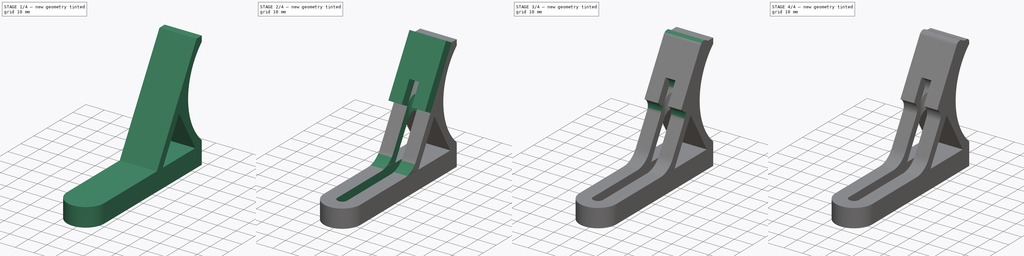
[diagram: build sequence overview — one tinted view per stage of 4, left to right]
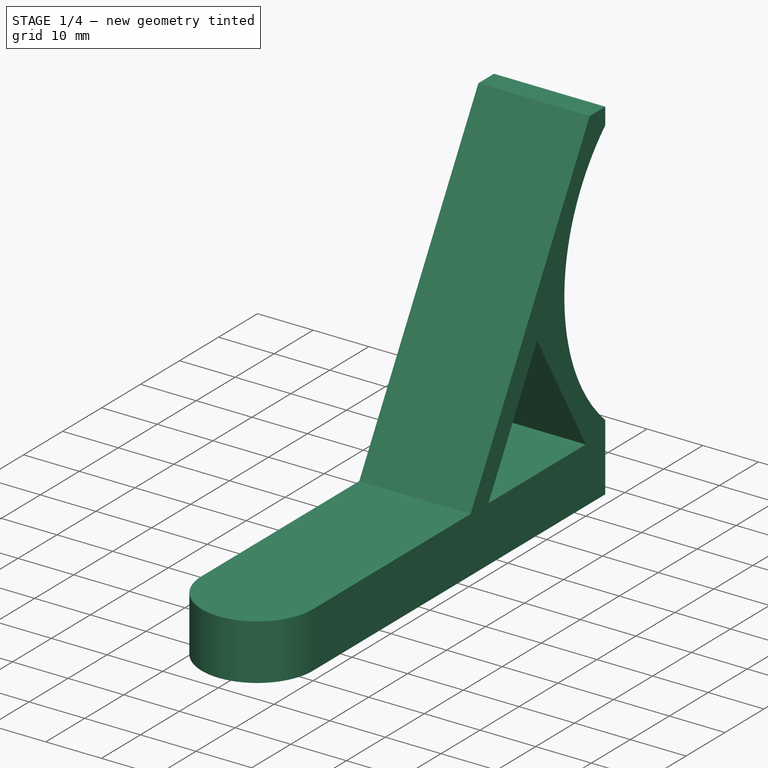
[diagram: stage 1 of 4 — iso view after this stage's code; geometry added in this stage tinted green]
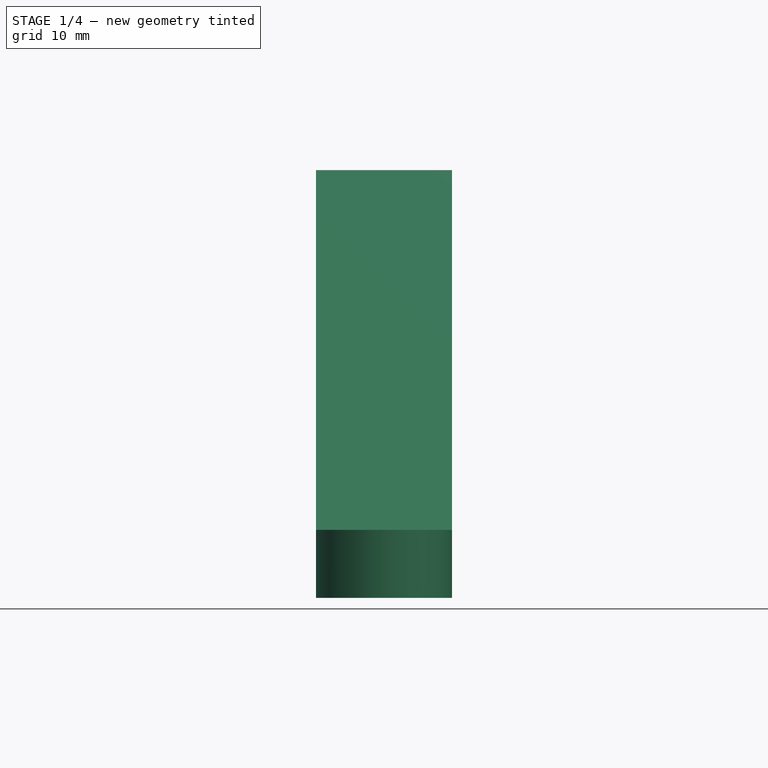
[diagram: stage 1 of 4 — front view after this stage's code; geometry added in this stage tinted green]
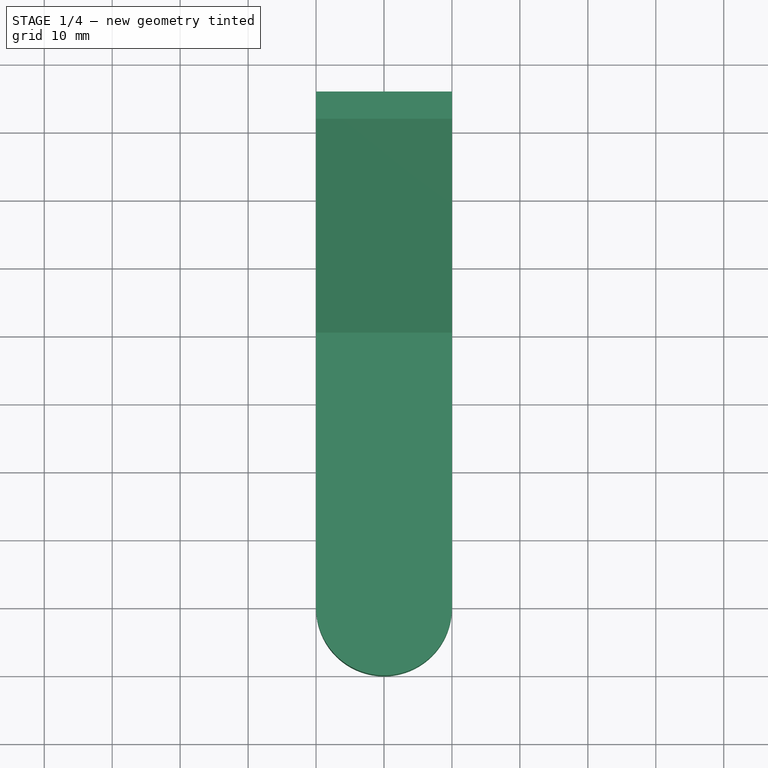
[diagram: stage 1 of 4 — top view after this stage's code; geometry added in this stage tinted green]
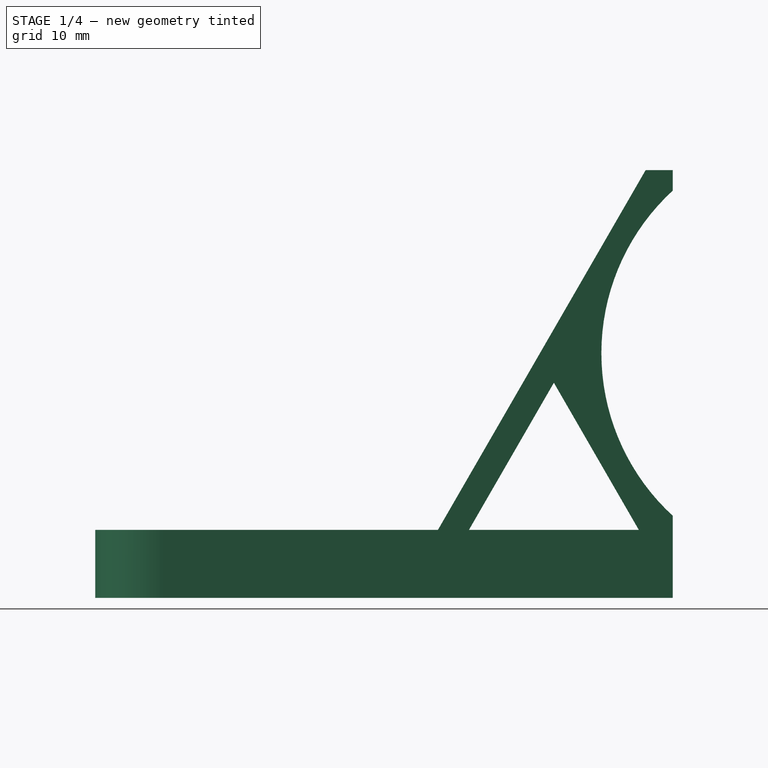
[diagram: stage 1 of 4 — right view after this stage's code; geometry added in this stage tinted green]
FCSTD DOCUMENT  (FreeCAD 0.18R16117 (Git))
Label: cnc_tube_holder
License: All rights reserved
LicenseURL: http://en.wikipedia.org/wiki/All_rights_reserved
objects: PartDesign::Fillet×6, Sketcher::SketchObject×4, PartDesign::Pad×2, PartDesign::Pocket×2, PartDesign::Body×1
note: 19 computed .brp shape members not serialized (recipe doc carries the construction recipe); baked Part::Feature solids carry a one-line shape summary decoded from their .brp

FEATURE [Sketcher::SketchObject] Sketch
  MapMode = 5
  Support = -> [XY_Plane]
  sketch-geometry (4):
    g0: LineSegment StartX=-10 StartY=75 StartZ=0 EndX=-10 EndY=0 EndZ=0
    g1: LineSegment StartX=10 StartY=-4e-16 StartZ=0 EndX=10 EndY=75 EndZ=0
    g2: LineSegment StartX=10 StartY=75 StartZ=0 EndX=-10 EndY=75 EndZ=0
    g3: ArcOfCircle CenterX=0 CenterY=-4e-16 CenterZ=0 NormalX=0 NormalY=0 NormalZ=1 AngleXU=0 Radius=10 StartAngle=3.14159 EndAngle=6.28319
  constraints (12):
    c: Coincident(g2,g0)
    c: Coincident(g2,g1)
    c: Vertical(g0)
    c: Vertical(g1)
    c: Horizontal(g2)
    c: Coincident(g0,g3)
    c: Coincident(g3,g1)
    c: Horizontal(g0,g1)
    c: Horizontal(g1,g3)
    c: DistanceY(g1,g1) = 75
    c: DistanceX(g2,g2) = 20
    c: Coincident(g3,g-1)
FEATURE [PartDesign::Pad] Pad
  Length = 67.31
  Length2 = 100
  Profile = -> Sketch
  Type = 0
FEATURE [Sketcher::SketchObject] Sketch001
  ExternalGeometry = -> [Pad]
  MapMode = 5
  Placement = pos=(-10,0,0) rot=(0.57735,-0.57735,-0.57735;2.0944rad)
  Support = -> [Pad]
  sketch-geometry (12):
    g0: LineSegment StartX=-71 StartY=62.9353 StartZ=0 EndX=-40.4378 EndY=10 EndZ=0
    g1: LineSegment StartX=26.9469 StartY=74.4791 StartZ=0 EndX=26.9469 EndY=10 EndZ=0
    g2: ArcOfCircle CenterX=-97 CenterY=36 CenterZ=0 NormalX=0 NormalY=0 NormalZ=1 AngleXU=0 Radius=32.51 StartAngle=5.45568 EndAngle=7.11069
    g3: LineSegment StartX=-75 StartY=59.9353 StartZ=0 EndX=-97 EndY=36 EndZ=0
    g4: LineSegment StartX=-97 StartY=36 StartZ=0 EndX=-75 EndY=12.0647 EndZ=0
    g5: LineSegment StartX=-81.8366 StartY=62.9353 StartZ=0 EndX=-71 EndY=62.9353 EndZ=0
    g6: LineSegment StartX=-81.8366 StartY=62.9353 StartZ=0 EndX=-81.8366 EndY=74.4791 EndZ=0
    g7: LineSegment StartX=-81.8366 StartY=74.4791 StartZ=0 EndX=26.9469 EndY=74.4791 EndZ=0
    g8: LineSegment StartX=26.9469 StartY=10 StartZ=0 EndX=-40.4378 EndY=10 EndZ=0
    g9: LineSegment StartX=-70 StartY=10 StartZ=0 EndX=-45 EndY=10 EndZ=0
    g10: LineSegment StartX=-57.5 StartY=31.6506 StartZ=0 EndX=-45 EndY=10 EndZ=0
    g11: LineSegment StartX=-57.5 StartY=31.6506 StartZ=0 EndX=-70 EndY=10 EndZ=0
  constraints (33):
    c: Vertical(g1)
    c: DistanceY(g-1,g0) = 10
    c: PointOnObject(g2,g-4)
    c: Coincident(g4,g2)
    c: Coincident(g3,g4)
    c: Coincident(g3,g2)
    c: Radius(g2) = 32.51
    c: Coincident(g2,g3)
    c: PointOnObject(g2,g-4)
    c: DistanceY(g-5,g2) = 36
    c: DistanceY(g2,g0) = 3
    c: DistanceX(g2,g0) = 4
    c: DistanceX(g2,g2) = 22
    c: Coincident(g5,g0)
    c: Horizontal(g5)
    c: Coincident(g8,g1)
    c: Horizontal(g8)
    c: Coincident(g8,g0)
    c: Coincident(g6,g7)
    c: Horizontal(g7)
    c: Vertical(g6)
    c: Coincident(g6,g5)
    c: Coincident(g7,g1)
    c: Coincident(g11,g10)
    c: Coincident(g11,g9)
    c: Horizontal(g9)
    c: Coincident(g10,g9)
    c: Angle(g10,g9) = 1.0472
    c: Horizontal(g9,g0)
    c: Angle(g9,g11) = 1.0472
    c: DistanceX(g-5,g9) = 5
    c: Angle(g8,g0) = 2.0944
    c: DistanceX(g9,g9) = 25
FEATURE [PartDesign::Pocket] Pocket
  BaseFeature = -> Pad
  Length = 5
  Length2 = 100
  Profile = -> Sketch001
  Type = 1
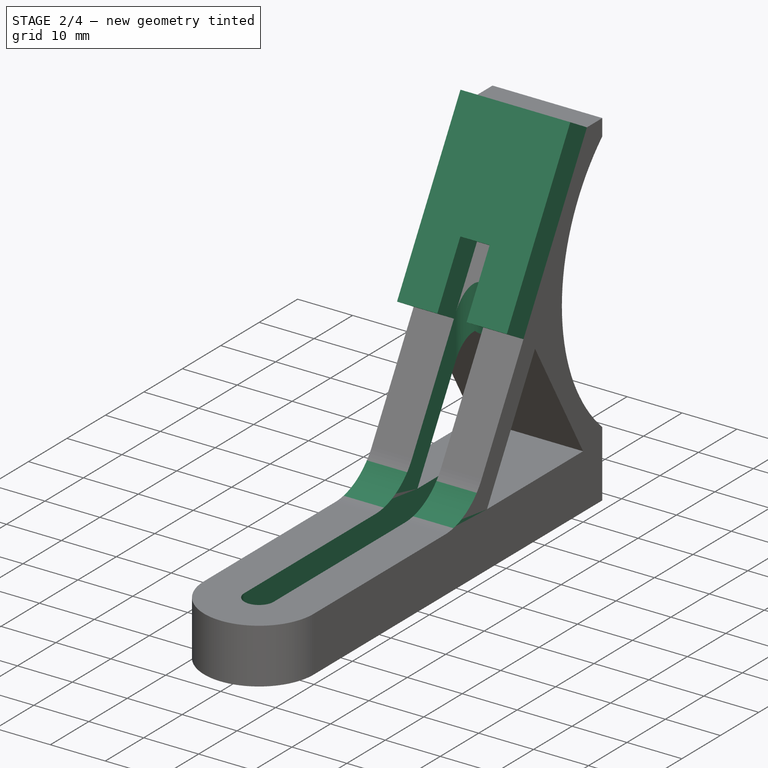
[diagram: stage 2 of 4 — iso view after this stage's code; geometry added in this stage tinted green]
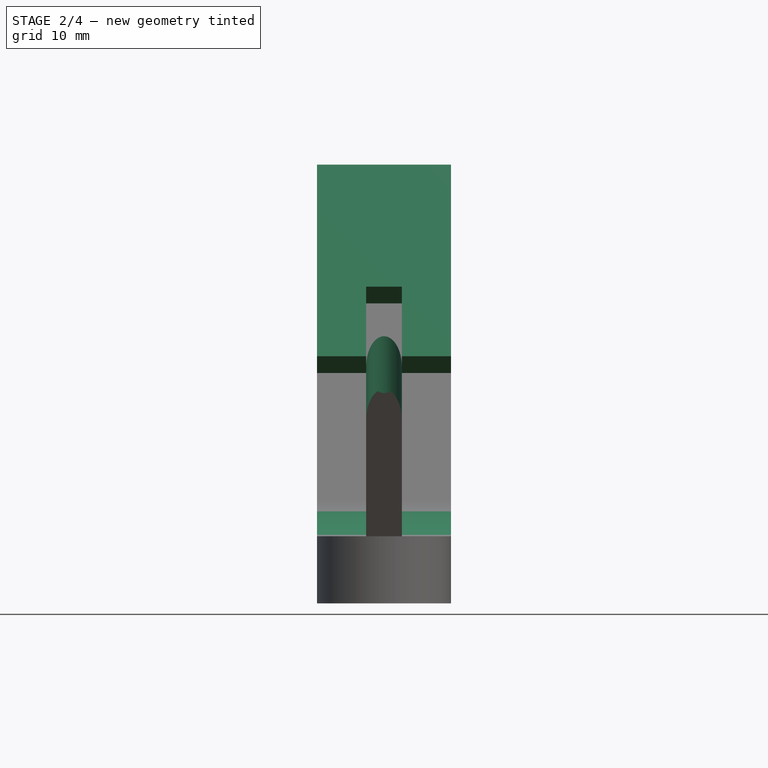
[diagram: stage 2 of 4 — front view after this stage's code; geometry added in this stage tinted green]
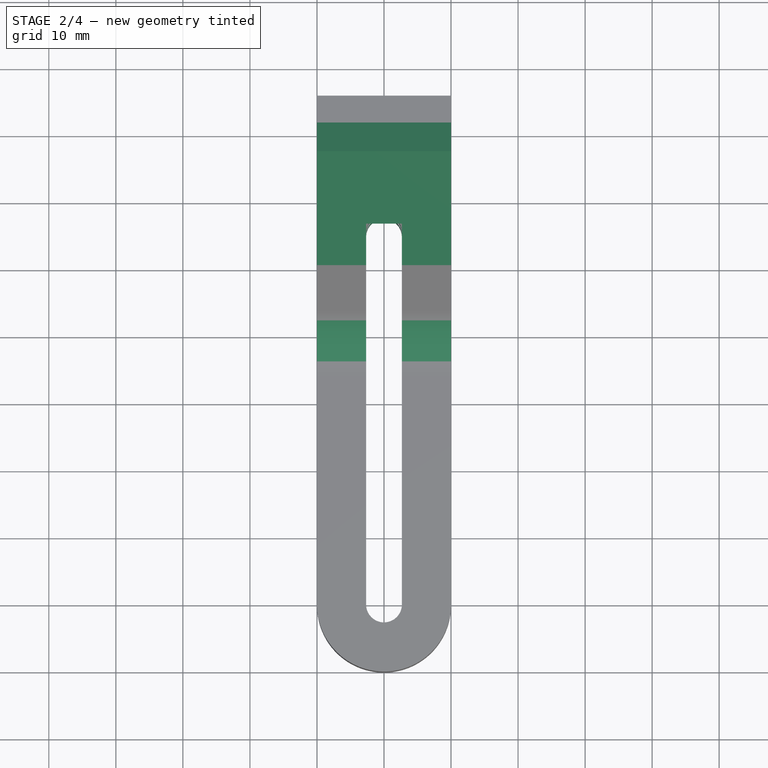
[diagram: stage 2 of 4 — top view after this stage's code; geometry added in this stage tinted green]
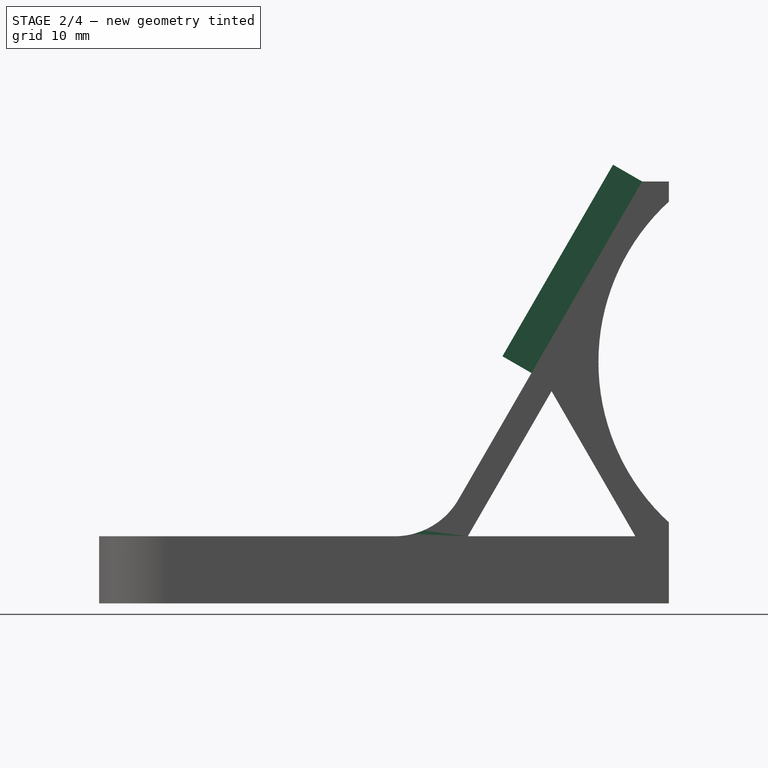
[diagram: stage 2 of 4 — right view after this stage's code; geometry added in this stage tinted green]
FEATURE [Sketcher::SketchObject] Sketch002
  MapMode = 5
  Placement = pos=(0,0,0) rot=(1,0,0;3.14159rad)
  Support = -> [Pocket]
  sketch-geometry (4):
    g0: ArcOfCircle CenterX=0 CenterY=0 CenterZ=0 NormalX=0 NormalY=0 NormalZ=1 AngleXU=0 Radius=2.667 StartAngle=1e-16 EndAngle=3.14159
    g1: ArcOfCircle CenterX=0 CenterY=-55 CenterZ=0 NormalX=0 NormalY=0 NormalZ=1 AngleXU=0 Radius=2.667 StartAngle=3.14159 EndAngle=6.28319
    g2: LineSegment StartX=-2.667 StartY=3e-16 StartZ=0 EndX=-2.667 EndY=-55 EndZ=0
    g3: LineSegment StartX=2.667 StartY=3e-16 StartZ=0 EndX=2.667 EndY=-55 EndZ=0
  constraints (9):
    c: Tangent(g0,g3) = 1.5708
    c: Tangent(g0,g2) = -1.5708
    c: Tangent(g2,g1) = -1.5708
    c: Tangent(g3,g1) = 1.5708
    c: Vertical(g2)
    c: Equal(g0,g1)
    c: Coincident(g0,g-1)
    c: DistanceX(g0,g0) = 5.334
    c: DistanceY(g3,g3) = 55
FEATURE [PartDesign::Pocket] Pocket001
  BaseFeature = -> Pocket
  Length = 5
  Length2 = 100
  Profile = -> Sketch002
  Type = 1
FEATURE [PartDesign::Fillet] Fillet
  Base = -> Pocket001 [Edge25,Edge21]
  BaseFeature = -> Pocket001
  Radius = 11
FEATURE [Sketcher::SketchObject] Sketch003
  ExternalGeometry = -> [Fillet]
  MapMode = 5
  Placement = pos=(0,25.9982,-15.0101) rot=(1,0,0;1.0472rad)
  Support = -> [Fillet]
  sketch-geometry (8):
    g0: LineSegment StartX=-10 StartY=90.0036 StartZ=0 EndX=10 EndY=90.0036 EndZ=0
    g1: LineSegment StartX=10 StartY=90.0036 StartZ=0 EndX=10 EndY=57.0036 EndZ=0
    g2: LineSegment StartX=-10 StartY=57.0036 StartZ=0 EndX=-10 EndY=90.0036 EndZ=0
    g3: LineSegment StartX=2.667 StartY=69.0036 StartZ=0 EndX=2.667 EndY=57.0036 EndZ=0
    g4: LineSegment StartX=2.667 StartY=57.0036 StartZ=0 EndX=10 EndY=57.0036 EndZ=0
    g5: LineSegment StartX=-10 StartY=57.0036 StartZ=0 EndX=-2.667 EndY=57.0036 EndZ=0
    g6: LineSegment StartX=-2.667 StartY=69.0036 StartZ=0 EndX=-2.667 EndY=57.0036 EndZ=0
    g7: LineSegment StartX=-2.667 StartY=69.0036 StartZ=0 EndX=2.667 EndY=69.0036 EndZ=0
  constraints (22):
    c: Coincident(g0,g2)
    c: Coincident(g0,g-4)
    c: Coincident(g0,g1)
    c: Coincident(g0,g-5)
    c: Horizontal(g7)
    c: Vertical(g6)
    c: Horizontal(g5)
    c: Horizontal(g4)
    c: Vertical(g3)
    c: Coincident(g7,g6)
    c: Coincident(g5,g6)
    c: PointOnObject(g5,g-7)
    c: Coincident(g2,g5)
    c: PointOnObject(g2,g-4)
    c: Coincident(g7,g3)
    c: Coincident(g3,g4)
    c: PointOnObject(g3,g-6)
    c: Equal(g3,g6)
    c: Coincident(g1,g4)
    c: PointOnObject(g1,g-5)
    c: DistanceY(g1,g1) = 33
    c: DistanceY(g3,g3) = 12
FEATURE [PartDesign::Pad] Pad001
  BaseFeature = -> Fillet
  Length = 5
  Length2 = 100
  Profile = -> Sketch003
  Type = 0
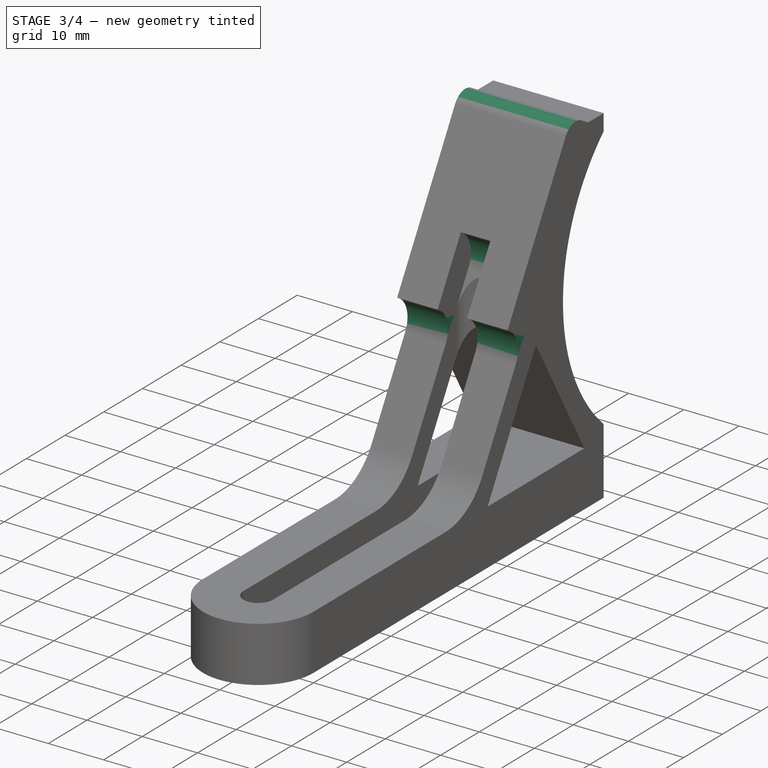
[diagram: stage 3 of 4 — iso view after this stage's code; geometry added in this stage tinted green]
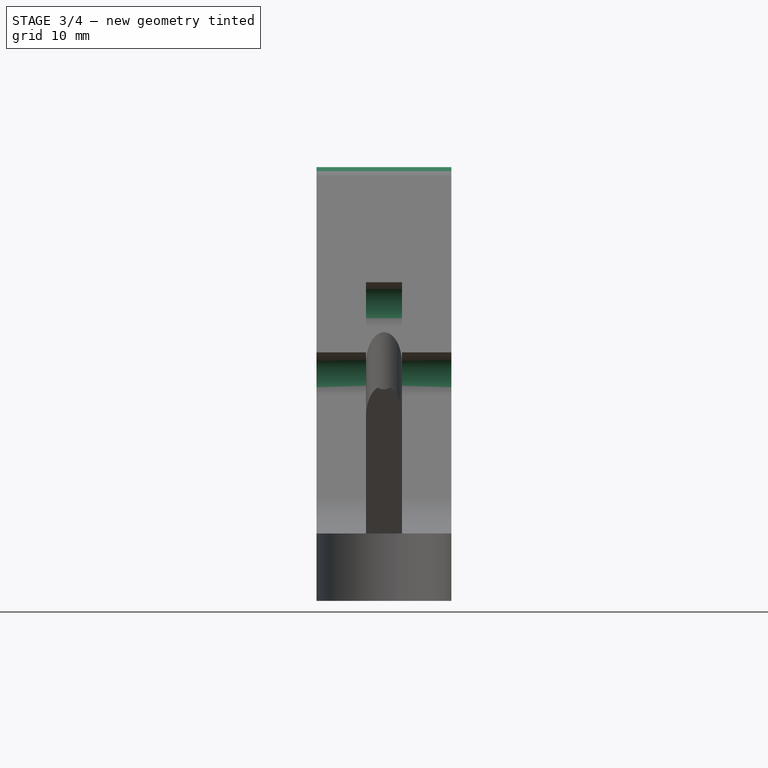
[diagram: stage 3 of 4 — front view after this stage's code; geometry added in this stage tinted green]
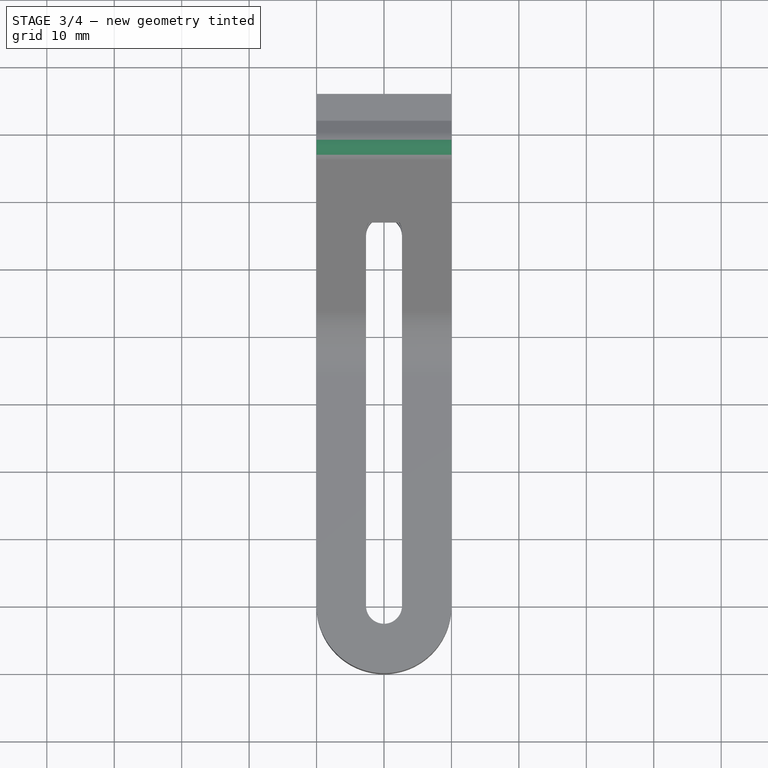
[diagram: stage 3 of 4 — top view after this stage's code; geometry added in this stage tinted green]
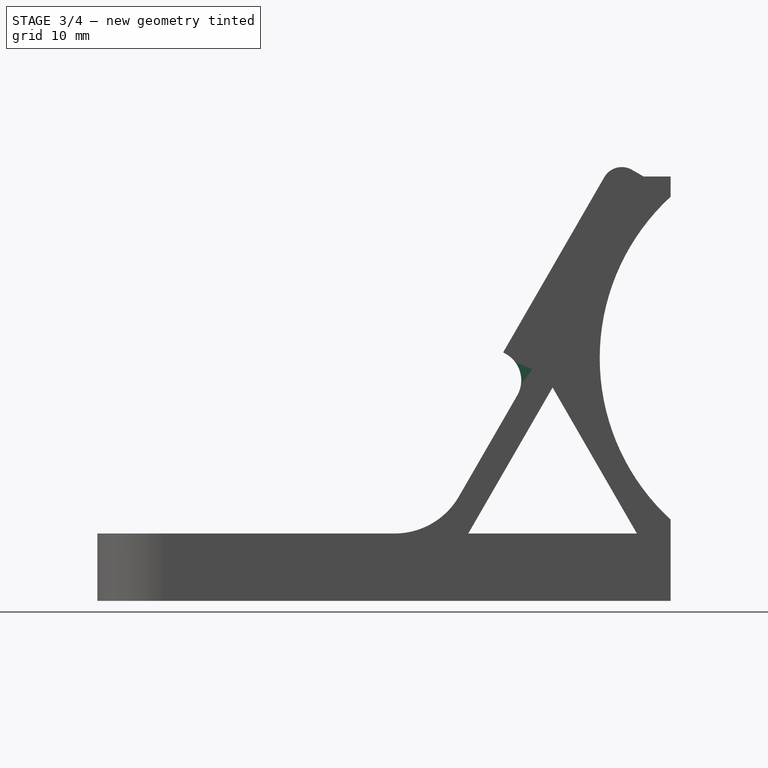
[diagram: stage 3 of 4 — right view after this stage's code; geometry added in this stage tinted green]
FEATURE [PartDesign::Fillet] Fillet001
  Base = -> Pad001 [Edge87,Edge29]
  BaseFeature = -> Pad001
  Radius = 4.5
FEATURE [PartDesign::Fillet] Fillet002
  Base = -> Fillet001 [Edge100]
  BaseFeature = -> Fillet001
  Radius = 4.75
FEATURE [PartDesign::Fillet] Fillet003
  Base = -> Fillet002 [Edge15]
  BaseFeature = -> Fillet002
  Radius = 3
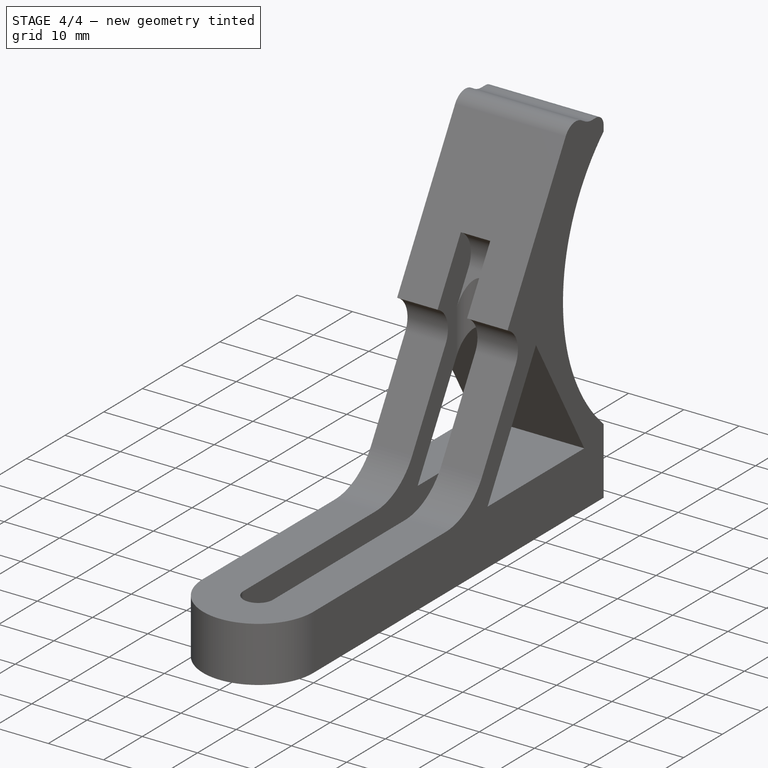
[diagram: stage 4 of 4 — iso view after this stage's code; geometry added in this stage tinted green]
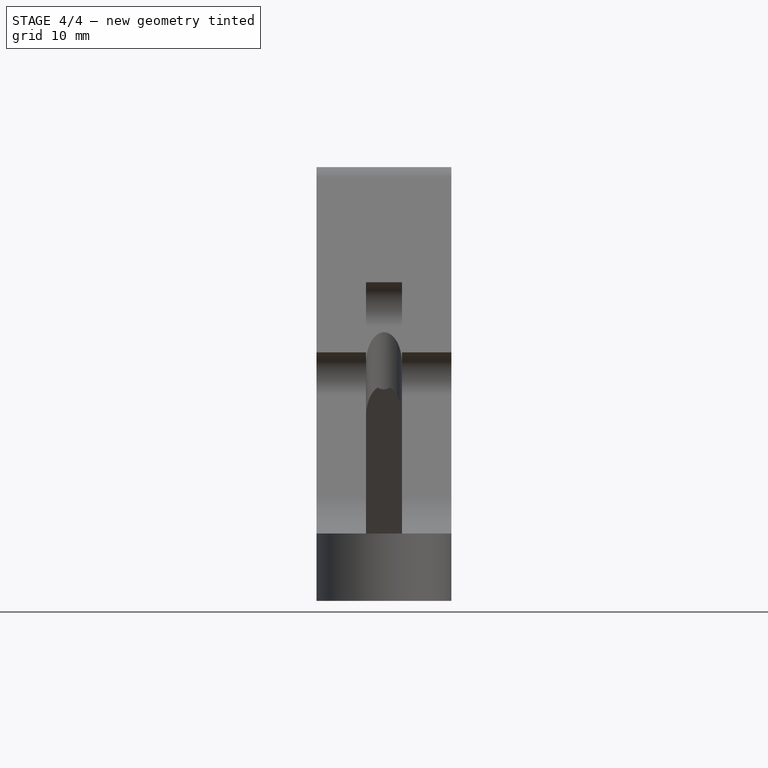
[diagram: stage 4 of 4 — front view after this stage's code; geometry added in this stage tinted green]
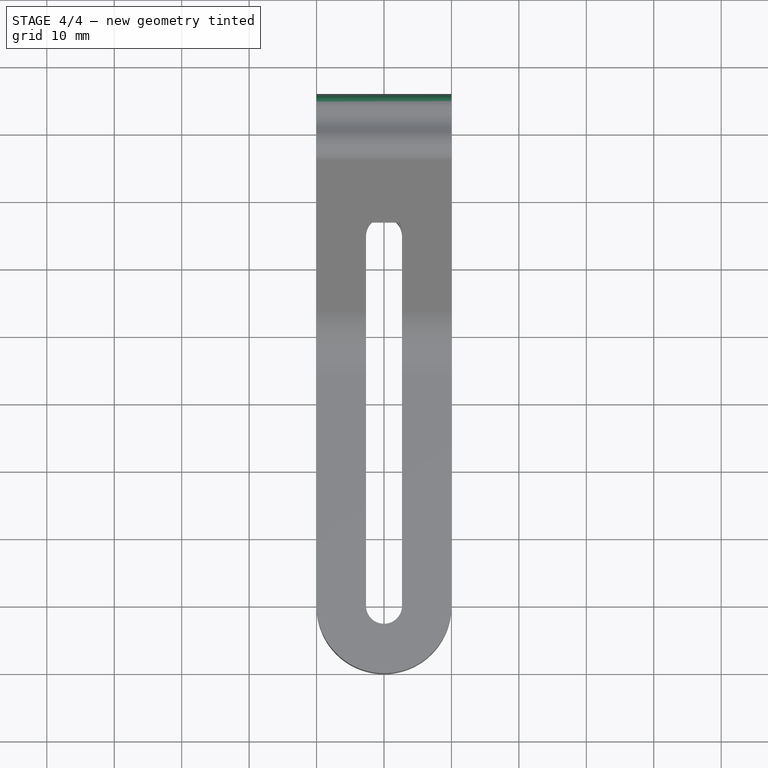
[diagram: stage 4 of 4 — top view after this stage's code; geometry added in this stage tinted green]
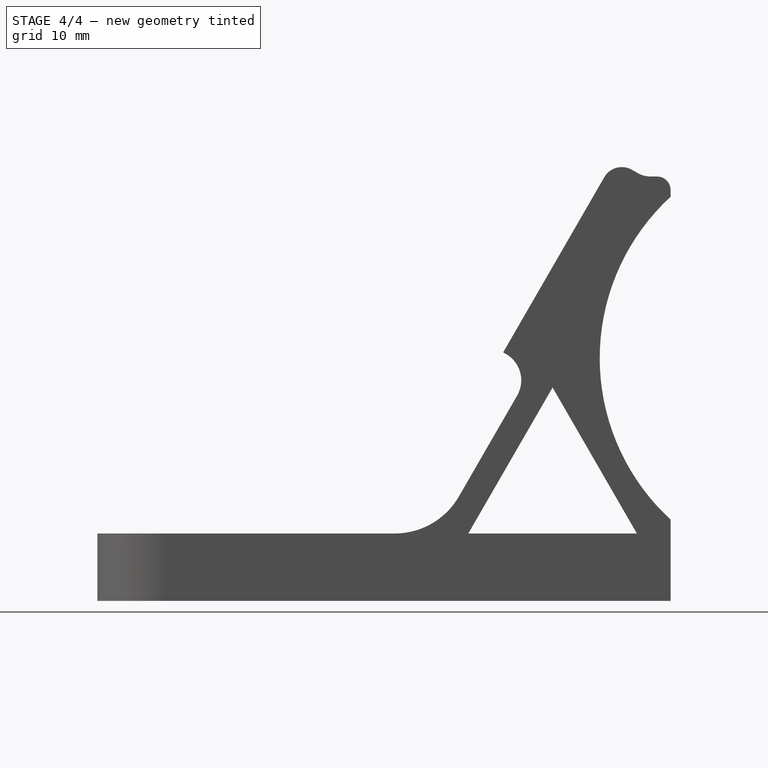
[diagram: stage 4 of 4 — right view after this stage's code; geometry added in this stage tinted green]
FEATURE [PartDesign::Fillet] Fillet004
  Base = -> Fillet003 [Edge39]
  BaseFeature = -> Fillet003
  Radius = 4
FEATURE [PartDesign::Fillet] Fillet005
  Base = -> Fillet004 [Edge44]
  BaseFeature = -> Fillet004
  Radius = 2
FEATURE [PartDesign::Body] Body
  Group = -> [Sketch,Pad,Sketch001,Pocket,Sketch002,Pocket001,Fillet,Sketch003,Pad001,Fillet001,Fillet002,Fillet003,Fillet004,Fillet005]
  Origin = -> Origin
  Tip = -> Fillet005
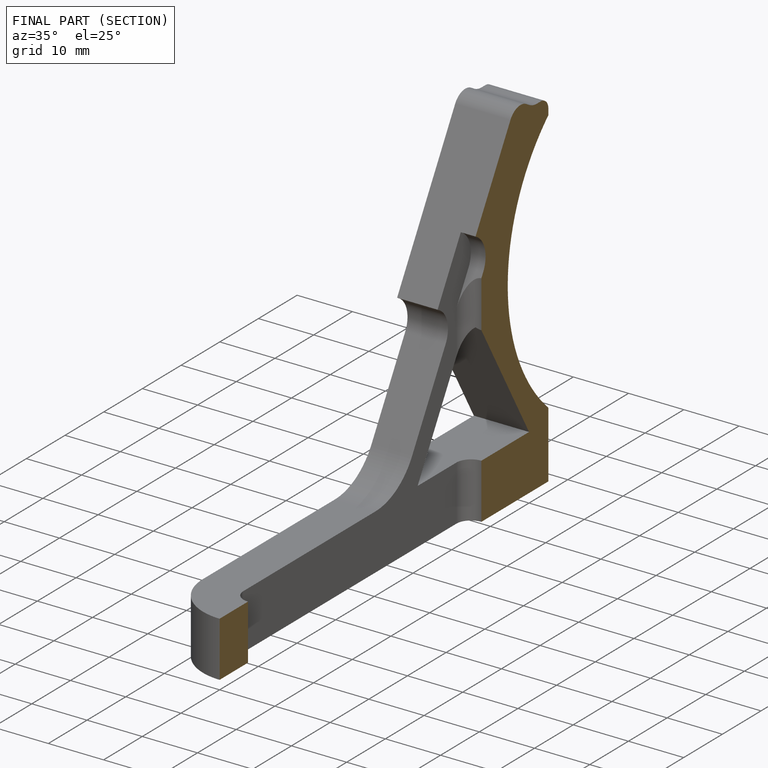
[diagram: finished part — half-section view (interior)]
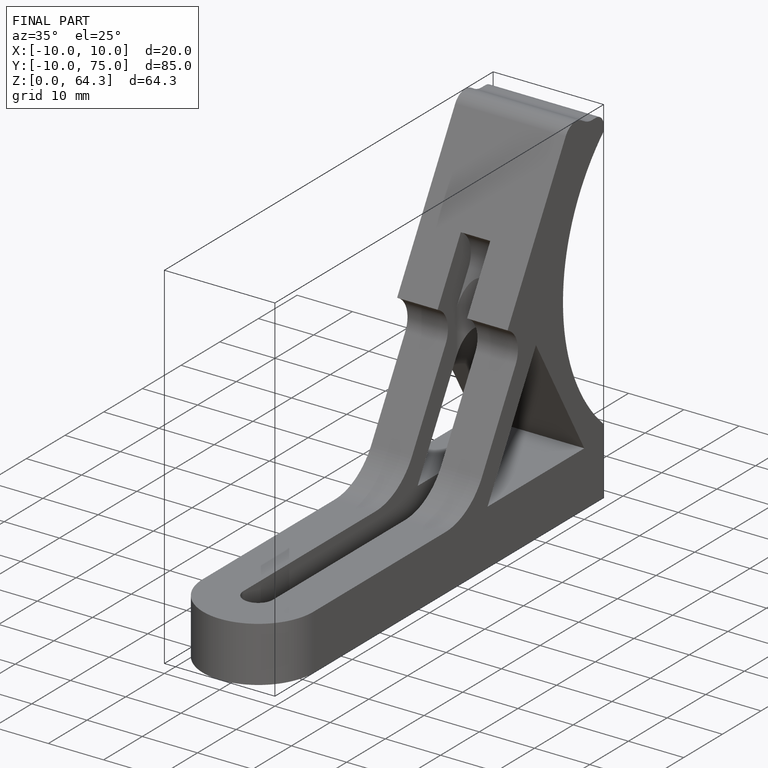
[diagram: finished part — iso view with bounding-box wireframe]
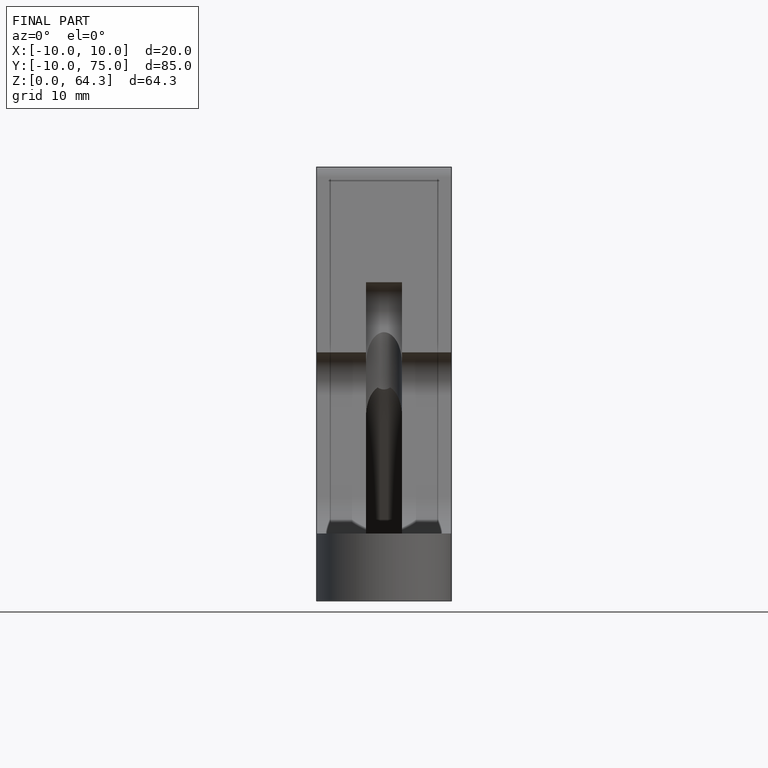
[diagram: finished part — front view with bounding-box wireframe]
